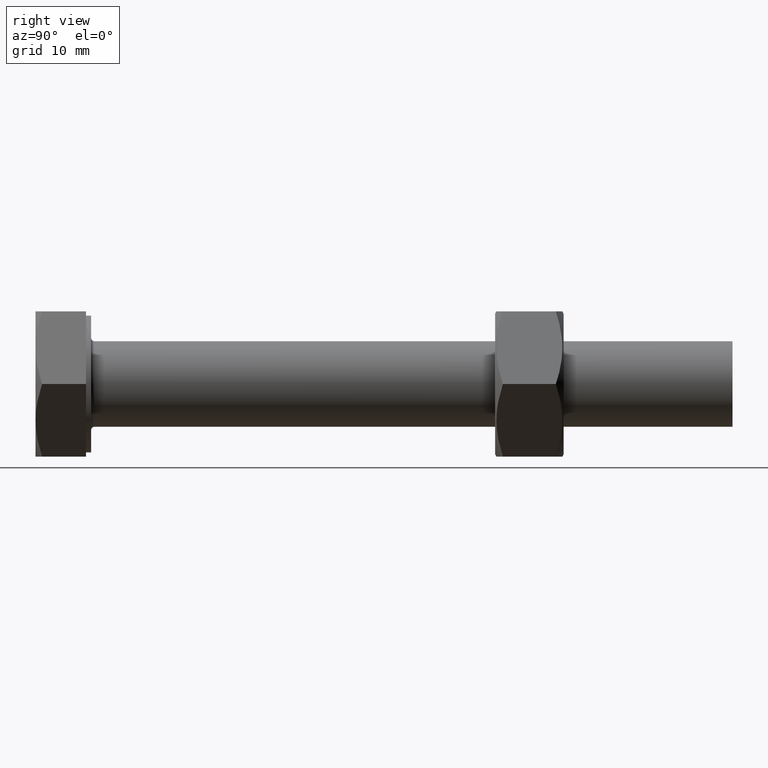
[diagram: clean part render]
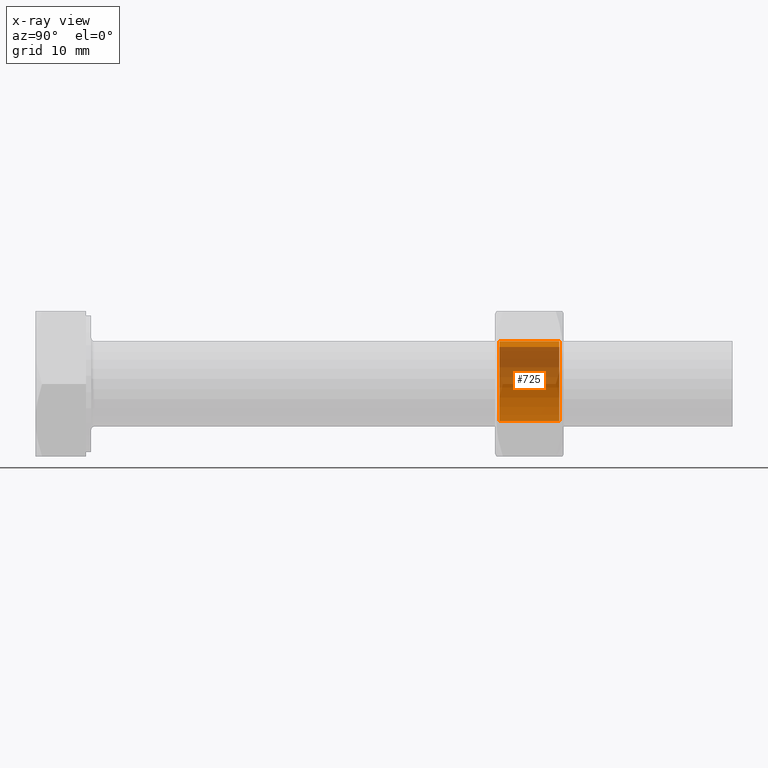
[diagram: x-ray — body ghosted, one internal face saturated and labeled with its STEP entity id]
A machine part, right view, then the same camera in x-ray: the body is ghosted and one INTERNAL B-rep face — a face not visible from any outside direction — is saturated and labeled: STEP entity #725.
In plain terms, the highlighted cylindrical surface (partial cylindrical patch) has radius 5 mm, axis along (0, 1, 0).
Its self-contained STEP definition (entity closure, byte-faithful):
#7 = CARTESIAN_POINT ( 'NONE',  ( 0.0000000000000000000, 0.4999999999999978400, 0.0000000000000000000 ) ) ;
#40 = CIRCLE ( 'NONE', #141, 5.000000000000000000 ) ;
#80 = EDGE_CURVE ( 'NONE', #547, #178, #40, .T. ) ;
#128 = VECTOR ( 'NONE', #735, 1000.000000000000000 ) ;
#136 = CARTESIAN_POINT ( 'NONE',  ( 0.0000000000000000000, 0.0000000000000000000, 0.0000000000000000000 ) ) ;
#141 = AXIS2_PLACEMENT_3D ( 'NONE', #7, #1188, #766 ) ;
#178 = VERTEX_POINT ( 'NONE', #578 ) ;
#182 = VERTEX_POINT ( 'NONE', #252 ) ;
#185 = CYLINDRICAL_SURFACE ( 'NONE', #250, 5.000000000000000000 ) ;
#218 = ORIENTED_EDGE ( 'NONE', *, *, #1352, .F. ) ;
#250 = AXIS2_PLACEMENT_3D ( 'NONE', #136, #997, #790 ) ;
#252 = CARTESIAN_POINT ( 'NONE',  ( 6.123233995736766300E-016, 7.500000000000002700, -5.000000000000000000 ) ) ;
#278 = CARTESIAN_POINT ( 'NONE',  ( 0.0000000000000000000, 7.500000000000002700, 5.000000000000000000 ) ) ;
#280 = CARTESIAN_POINT ( 'NONE',  ( 6.123233995736766300E-016, 0.0000000000000000000, -5.000000000000000000 ) ) ;
#382 = ORIENTED_EDGE ( 'NONE', *, *, #986, .T. ) ;
#399 = EDGE_CURVE ( 'NONE', #182, #875, #1010, .T. ) ;
#424 = ORIENTED_EDGE ( 'NONE', *, *, #80, .T. ) ;
#464 = ORIENTED_EDGE ( 'NONE', *, *, #399, .T. ) ;
#470 = FACE_OUTER_BOUND ( 'NONE', #906, .T. ) ;
#547 = VERTEX_POINT ( 'NONE', #1310 ) ;
#578 = CARTESIAN_POINT ( 'NONE',  ( 6.123233995736766300E-016, 0.4999999999999978400, -5.000000000000000000 ) ) ;
#604 = CARTESIAN_POINT ( 'NONE',  ( 0.0000000000000000000, 0.0000000000000000000, 5.000000000000000000 ) ) ;
#711 = DIRECTION ( 'NONE',  ( -0.0000000000000000000, 1.000000000000000000, -0.0000000000000000000 ) ) ;
#725 = ADVANCED_FACE ( 'NONE', ( #470 ), #185, .F. ) ;
#735 = DIRECTION ( 'NONE',  ( -0.0000000000000000000, 1.000000000000000000, -0.0000000000000000000 ) ) ;
#766 = DIRECTION ( 'NONE',  ( 0.0000000000000000000, 0.0000000000000000000, 1.000000000000000000 ) ) ;
#790 = DIRECTION ( 'NONE',  ( 0.0000000000000000000, 0.0000000000000000000, 1.000000000000000000 ) ) ;
#844 = VECTOR ( 'NONE', #711, 1000.000000000000000 ) ;
#875 = VERTEX_POINT ( 'NONE', #278 ) ;
#881 = DIRECTION ( 'NONE',  ( 0.0000000000000000000, 0.0000000000000000000, 1.000000000000000000 ) ) ;
#885 = DIRECTION ( 'NONE',  ( 0.0000000000000000000, 1.000000000000000000, 0.0000000000000000000 ) ) ;
#906 = EDGE_LOOP ( 'NONE', ( #424, #382, #464, #218 ) ) ;
#934 = CARTESIAN_POINT ( 'NONE',  ( 0.0000000000000000000, 7.500000000000002700, 0.0000000000000000000 ) ) ;
#986 = EDGE_CURVE ( 'NONE', #178, #182, #1314, .T. ) ;
#997 = DIRECTION ( 'NONE',  ( -0.0000000000000000000, 1.000000000000000000, -0.0000000000000000000 ) ) ;
#1010 = CIRCLE ( 'NONE', #1378, 5.000000000000000000 ) ;
#1123 = LINE ( 'NONE', #604, #844 ) ;
#1188 = DIRECTION ( 'NONE',  ( -0.0000000000000000000, -1.000000000000000000, -0.0000000000000000000 ) ) ;
#1310 = CARTESIAN_POINT ( 'NONE',  ( 0.0000000000000000000, 0.4999999999999978400, 5.000000000000000000 ) ) ;
#1314 = LINE ( 'NONE', #280, #128 ) ;
#1352 = EDGE_CURVE ( 'NONE', #547, #875, #1123, .T. ) ;
#1378 = AXIS2_PLACEMENT_3D ( 'NONE', #934, #885, #881 ) ;